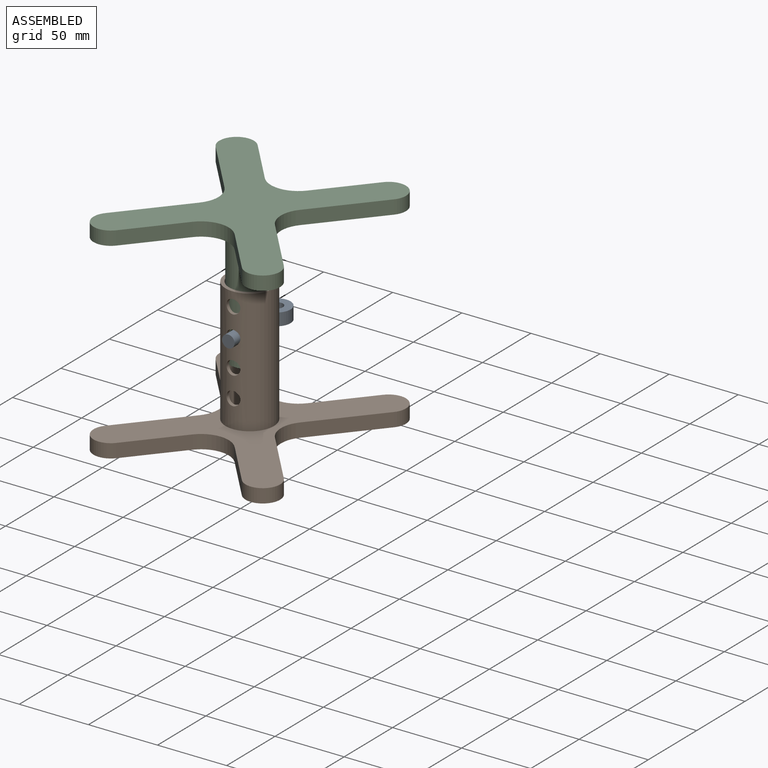
[diagram: assembled view]
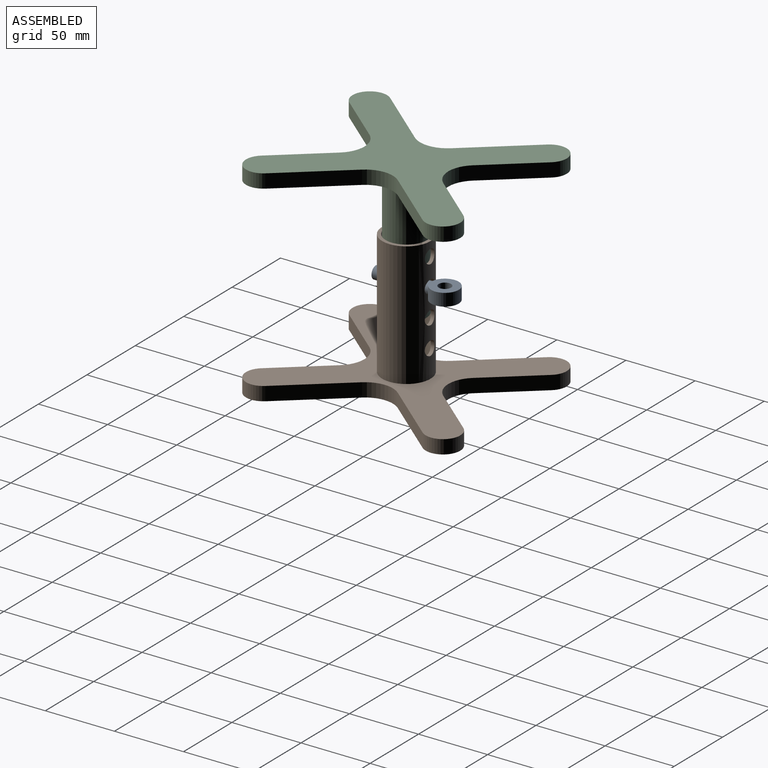
[diagram: assembled view, second angle]
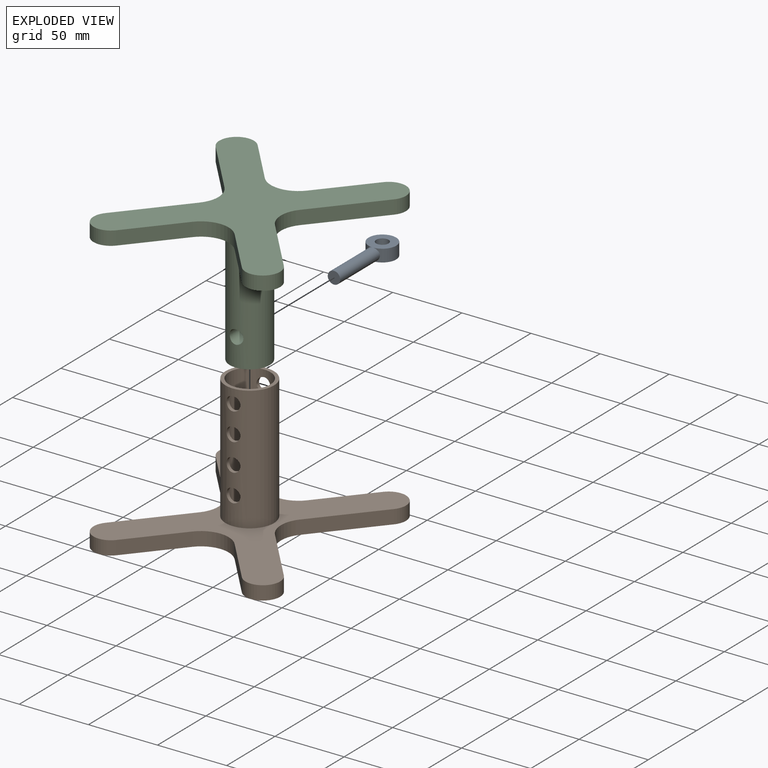
[diagram: exploded view]
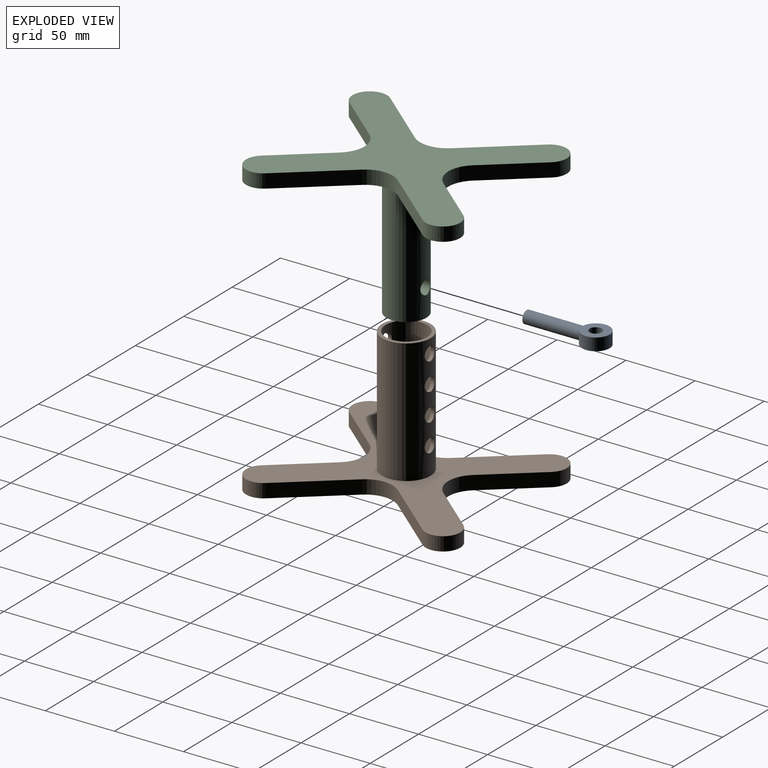
[diagram: exploded view, second angle]
ASSEMBLY  parts=3 mates=2
PART A: 6 faces, bbox 20x60x9 mm
  f0: cylinder r=10mm len=20mm, axis (0,0,-1), area 500.1mm2, adj f3,f4,f5
  f1: plane 9x9mm, normal (0,-1,0), area 63.6mm2, adj f5
  f2: cylinder r=4.5mm len=9mm, axis (0,0,-1), area 254.5mm2, adj f3,f4
  f3: plane 20x20mm, normal (0,0,1), area 250.5mm2, adj f0,f2
  f4: plane 20x20mm, normal (0,0,-1), area 250.5mm2, adj f0,f2
  f5: cylinder r=4.5mm len=41.07mm, axis (0,1,0), area 1145.9mm2, adj f0,f1
PART B: 30 faces, bbox 135x155x100 mm
  f0: cylinder r=12.5mm len=22.04mm, axis (0,0,-1), area 392.7mm2, adj f1,f15,f16,f17
  f1: plane 44.01x37.24mm, normal (-0.76,-0.65,0), area 576.5mm2, adj f0,f2,f16,f17
  f2: cylinder r=20mm len=25.84mm, axis (0,0,-1), area 280.9mm2, adj f1,f3,f16,f17
  f3: plane 44.01x37.24mm, normal (-0.76,0.65,0), area 576.5mm2, adj f2,f4,f16,f17
  f4: cylinder r=12.5mm len=22.04mm, axis (0,0,-1), area 392.7mm2, adj f3,f5,f16,f17
  f5: plane 35.68x30.19mm, normal (0.76,-0.65,0), area 467.4mm2, adj f4,f6,f16,f17
  f6: cylinder r=20mm len=30.54mm, axis (0,0,-1), area 347.4mm2, adj f5,f7,f16,f17
  f7: plane 35.68x30.19mm, normal (-0.76,-0.65,0), area 467.4mm2, adj f6,f8,f16,f17
  f8: cylinder r=12.5mm len=22.04mm, axis (0,0,-1), area 392.7mm2, adj f7,f9,f16,f17
  f9: plane 44.01x37.24mm, normal (0.76,0.65,0), area 576.5mm2, adj f8,f10,f16,f17
  f10: cylinder r=20mm len=25.84mm, axis (0,0,-1), area 280.9mm2, adj f9,f11,f16,f17
  f11: plane 44.01x37.24mm, normal (0.76,-0.65,0), area 576.5mm2, adj f10,f12,f16,f17
  f12: cylinder r=12.5mm len=22.04mm, axis (0,0,-1), area 392.7mm2, adj f11,f13,f16,f17
  f13: plane 35.68x30.19mm, normal (-0.76,0.65,0), area 467.4mm2, adj f12,f14,f16,f17
  f14: cylinder r=20mm len=30.54mm, axis (0,0,-1), area 347.4mm2, adj f13,f15,f16,f17
  f15: plane 35.68x30.19mm, normal (0.76,0.65,0), area 467.4mm2, adj f0,f14,f16,f17
  f16: plane 155x135mm, normal (0,0,1), area 8266.3mm2, adj f0,f1,f2,f3,f4,f5,f6,f7
  f17: plane 155x135mm, normal (0,0,-1), area 9228.4mm2, adj f0,f1,f2,f3,f4,f5,f6,f7
  f18: cylinder r=15mm len=90mm, axis (0,0,-1), area 7845.6mm2, adj f20,f21,f22,f23,f24,f25,f26,f27
  f19: cylinder r=17.5mm len=90mm, axis (0,0,-1), area 9261.1mm2, adj f16,f20,f22,f23,f24,f25,f26,f27
  f20: plane 35x35mm, normal (0,0,1), area 255.3mm2, adj f18,f19
  f21: plane 30x30mm, normal (0,0,1), area 706.9mm2, adj f18
  f22: cylinder r=5mm len=10mm, axis (0,-1,0), area 80.5mm2, adj f18,f19
  f23: cylinder r=5mm len=10mm, axis (0,-1,0), area 80.5mm2, adj f18,f19
  f24: cylinder r=5mm len=10mm, axis (0,-1,0), area 80.5mm2, adj f18,f19
  f25: cylinder r=5mm len=10mm, axis (0,-1,0), area 80.5mm2, adj f18,f19
  f26: cylinder r=5mm len=10mm, axis (0,-1,0), area 80.5mm2, adj f18,f19
  f27: cylinder r=5mm len=10mm, axis (0,-1,0), area 80.5mm2, adj f18,f19
  f28: cylinder r=5mm len=10mm, axis (0,-1,0), area 80.5mm2, adj f18,f19
  f29: cylinder r=5mm len=10mm, axis (0,-1,0), area 80.5mm2, adj f18,f19
PART C: 21 faces, bbox 135x155x100 mm
  f0: cylinder r=12.5mm len=22.04mm, axis (0,0,-1), area 392.7mm2, adj f1,f15,f16,f17
  f1: plane 44.01x37.24mm, normal (-0.76,-0.65,0), area 576.5mm2, adj f0,f2,f16,f17
  f2: cylinder r=20mm len=25.84mm, axis (0,0,-1), area 280.9mm2, adj f1,f3,f16,f17
  f3: plane 44.01x37.24mm, normal (-0.76,0.65,0), area 576.5mm2, adj f2,f4,f16,f17
  f4: cylinder r=12.5mm len=22.04mm, axis (0,0,-1), area 392.7mm2, adj f3,f5,f16,f17
  f5: plane 35.68x30.19mm, normal (0.76,-0.65,0), area 467.4mm2, adj f4,f6,f16,f17
  f6: cylinder r=20mm len=30.54mm, axis (0,0,-1), area 347.4mm2, adj f5,f7,f16,f17
  f7: plane 35.68x30.19mm, normal (-0.76,-0.65,0), area 467.4mm2, adj f6,f8,f16,f17
  f8: cylinder r=12.5mm len=22.04mm, axis (0,0,-1), area 392.7mm2, adj f7,f9,f16,f17
  f9: plane 44.01x37.24mm, normal (0.76,0.65,0), area 576.5mm2, adj f8,f10,f16,f17
  f10: cylinder r=20mm len=25.84mm, axis (0,0,-1), area 280.9mm2, adj f9,f11,f16,f17
  f11: plane 44.01x37.24mm, normal (0.76,-0.65,0), area 576.5mm2, adj f10,f12,f16,f17
  f12: cylinder r=12.5mm len=22.04mm, axis (0,0,-1), area 392.7mm2, adj f11,f13,f16,f17
  f13: plane 35.68x30.19mm, normal (-0.76,0.65,0), area 467.4mm2, adj f12,f14,f16,f17
  f14: cylinder r=20mm len=30.54mm, axis (0,0,-1), area 347.4mm2, adj f13,f15,f16,f17
  f15: plane 35.68x30.19mm, normal (0.76,0.65,0), area 467.4mm2, adj f0,f14,f16,f17
  f16: plane 155x135mm, normal (0,0,1), area 8567.9mm2, adj f0,f1,f2,f3,f4,f5,f6,f7
  f17: plane 155x135mm, normal (0,0,-1), area 9228.4mm2, adj f0,f1,f2,f3,f4,f5,f6,f7
  f18: cylinder r=14.5mm len=90mm, axis (0,0,-1), area 8040.2mm2, adj f16,f19,f20
  f19: plane 29x29mm, normal (0,0,1), area 660.5mm2, adj f18
  f20: cylinder r=5mm len=29mm, axis (0,-1,0), area 883.3mm2, adj f18
PLACE A t=(86.8,-65.17,3.51)mm
PLACE B t=(86.8,-93.04,-61.04)mm fixed
PLACE C rot(axis=(0,1,0),180deg) t=(86.8,-93.04,88.01)mm
MATE slider C.f20 <-> A.f5  axis (0,-1,0) through (86.8,-78.36,8.01)mm
MATE slider C.f18 <-> B.f18  axis (0,0,-1) through (86.8,-93.04,-11.99)mm
